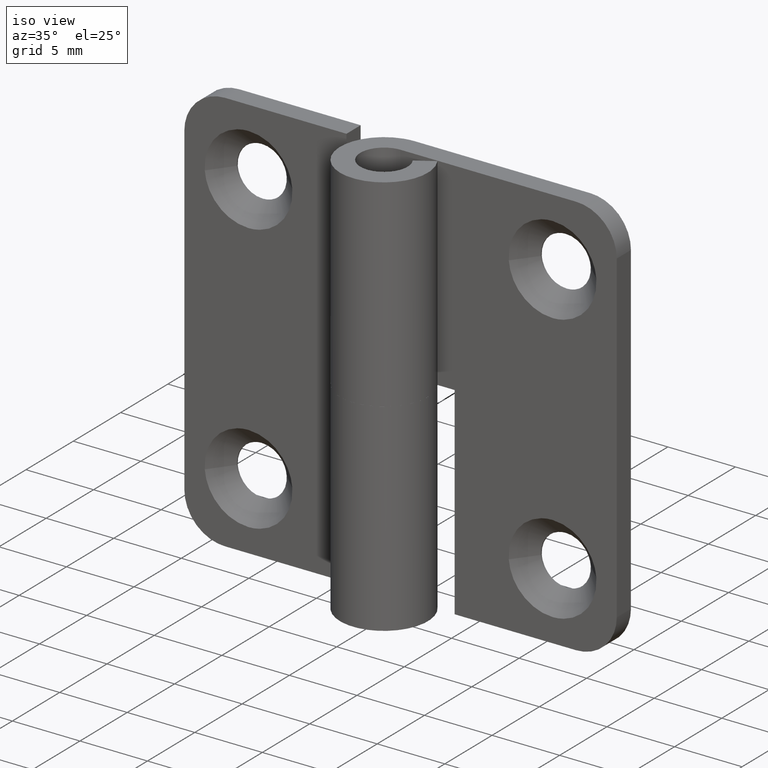
[diagram: clean part render]
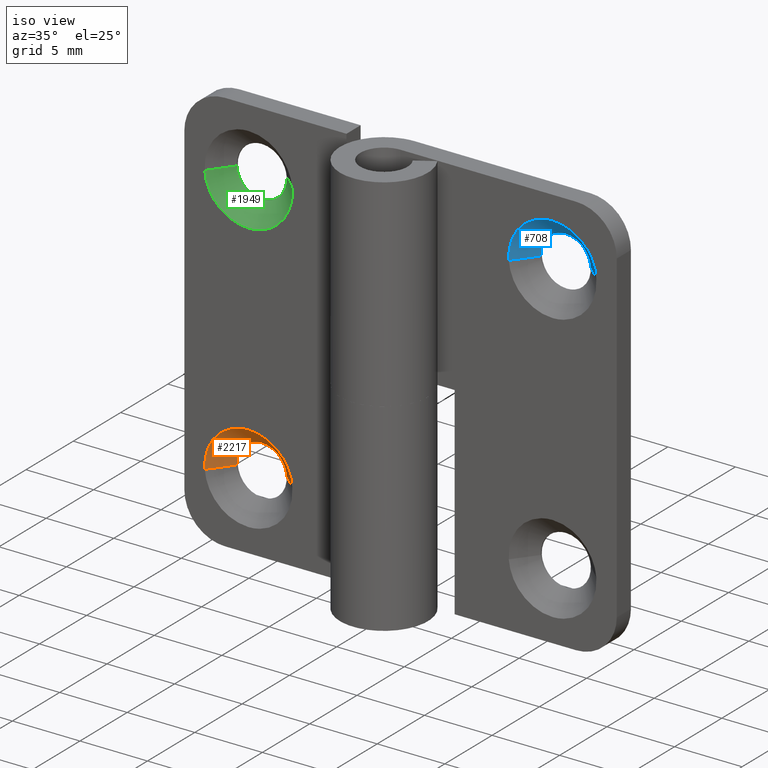
[diagram: same view with three faces highlighted in distinct colors, each labeled with its STEP entity id]
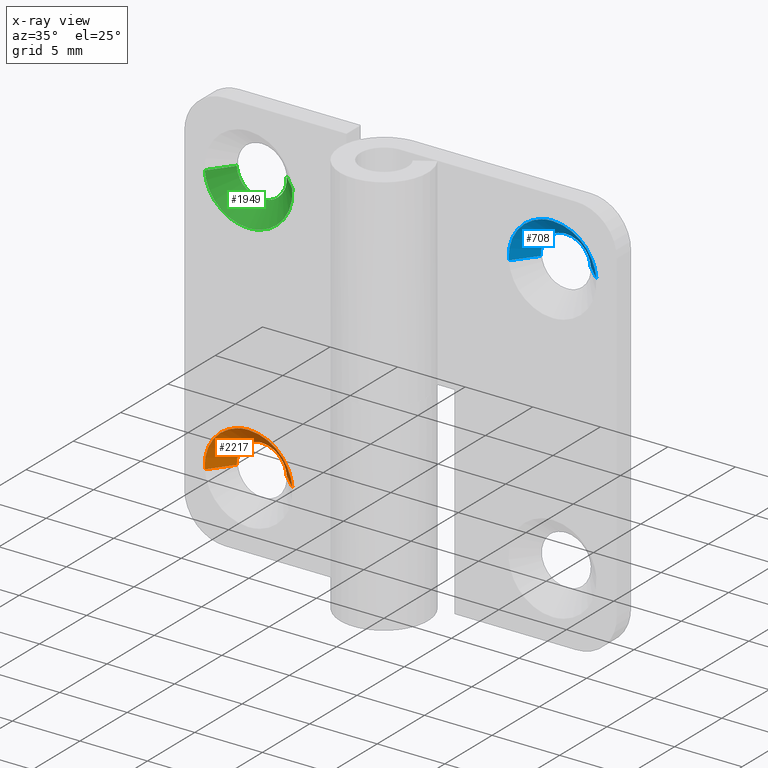
[diagram: x-ray of the same camera — body ghosted, the three highlighted faces saturated]
A machine part, iso view with three faces highlighted in distinct colors.
The next image is the same camera in x-ray (body ghosted, the three faces saturated) — at least one of them is partly hidden behind the body in this view.
Their STEP definitions:

[orange] entity #2217 — the highlighted face is a freeform B-spline surface patch.
#2022=CARTESIAN_POINT('',(-13.096549360003021,3.149999978168635,4.887060362003985));
#2023=VERTEX_POINT('',#2022);
#2067=CARTESIAN_POINT('',(-9.405703289372909,3.150000317850807,5.145149049549113));
#2068=VERTEX_POINT('',#2067);
#2084=CARTESIAN_POINT('',(-11.250000000000000,3.149999976158145,6.849999964237215));
#2085=VERTEX_POINT('',#2084);
#2086=CARTESIAN_POINT('',(-11.250000000000000,3.149999976158145,6.849999964237215));
#2087=CARTESIAN_POINT('',(-9.539877162278843,3.149999976158146,6.849999964237216));
#2088=CARTESIAN_POINT('',(-9.405703289372909,3.150000317850807,5.145149049549114));
#2096=(BOUNDED_CURVE()B_SPLINE_CURVE(2,(#2086,#2087,#2088),.UNSPECIFIED.,.F.,.U.)B_SPLINE_CURVE_WITH_KNOTS((3,3),(0.0,0.236331346722652),.UNSPECIFIED.)CURVE()GEOMETRIC_REPRESENTATION_ITEM()RATIONAL_B_SPLINE_CURVE((1.0,0.723120604607538,0.969723452357909))REPRESENTATION_ITEM(''));
#2097=EDGE_CURVE('',#2085,#2068,#2096,.T.);
#2099=CARTESIAN_POINT('',(-13.096549360003019,3.149999978168635,4.887060362003985));
#2100=CARTESIAN_POINT('',(-13.099999964237213,3.149999976158145,4.943477468465489));
#2101=CARTESIAN_POINT('',(-13.099999964237220,3.149999976158145,5.0));
#2102=CARTESIAN_POINT('',(-13.099999964237217,3.149999976158146,6.849999964237217));
#2103=CARTESIAN_POINT('',(-11.250000000000000,3.149999976158145,6.849999964237215));
#2111=(BOUNDED_CURVE()B_SPLINE_CURVE(2,(#2099,#2100,#2101,#2102,#2103),.UNSPECIFIED.,.F.,.U.)B_SPLINE_CURVE_WITH_KNOTS((3,2,3),(0.739332977053219,0.750000000000000,1.0),.UNSPECIFIED.)CURVE()GEOMETRIC_REPRESENTATION_ITEM()RATIONAL_B_SPLINE_CURVE((0.976072073416533,0.987502805255841,1.0,0.707106781186548,1.0))REPRESENTATION_ITEM(''));
#2112=EDGE_CURVE('',#2023,#2085,#2111,.T.);
#2151=CARTESIAN_POINT('',(-9.440595074332713,3.184999975562100,5.142403255986888));
#2152=CARTESIAN_POINT('',(-9.582998330319601,3.184999975562100,6.951808181654176));
#2153=CARTESIAN_POINT('',(-11.392403255986890,3.184999975562100,6.809404925667288));
#2154=CARTESIAN_POINT('',(-13.201808181654176,3.184999975562100,6.667001669680398));
#2155=CARTESIAN_POINT('',(-13.059404925667289,3.184999975562100,4.857596744013112));
#2156=CARTESIAN_POINT('',(-7.974254316049626,1.714125000610947,5.257806776450273));
#2157=CARTESIAN_POINT('',(-8.232061092499899,1.714125000610948,8.533552460400648));
#2158=CARTESIAN_POINT('',(-11.507806776450270,1.714125000610947,8.275745683950374));
#2159=CARTESIAN_POINT('',(-14.783552460400649,1.714125000610948,8.017938907500101));
#2160=CARTESIAN_POINT('',(-14.525745683950371,1.714125000610947,4.742193223549727));
#2168=(BOUNDED_SURFACE()B_SPLINE_SURFACE(2,1,((#2151,#2156),(#2152,#2157),(#2153,#2158),(#2154,#2159),(#2155,#2160)),.UNSPECIFIED.,.F.,.F.,.U.)B_SPLINE_SURFACE_WITH_KNOTS((3,2,3),(2,2),(0.0,5.444215857282317,10.888431714564630),(0.0,2.080131338131109),.UNSPECIFIED.)GEOMETRIC_REPRESENTATION_ITEM()RATIONAL_B_SPLINE_SURFACE(((1.0,1.0),(0.707106781186548,0.707106781186548),(1.0,1.0),(0.707106781186548,0.707106781186548),(1.0,1.0)))REPRESENTATION_ITEM('')SURFACE());
#2169=ORIENTED_EDGE('',*,*,#2097,.T.);
#2170=CARTESIAN_POINT('',(-8.010018724783620,1.749999999988450,5.254992056527515));
#2171=VERTEX_POINT('',#2170);
#2172=CARTESIAN_POINT('',(-9.405703289372909,3.150000317850807,5.145149049549113));
#2173=CARTESIAN_POINT('',(-8.010018724783620,1.749999999988450,5.254992056527515));
#2174=QUASI_UNIFORM_CURVE('',1,(#2172,#2173),.UNSPECIFIED.,.F.,.U.);
#2175=EDGE_CURVE('',#2068,#2171,#2174,.T.);
#2176=ORIENTED_EDGE('',*,*,#2175,.T.);
#2177=CARTESIAN_POINT('',(-11.250000000000000,1.750000000000000,8.249999940395357));
#2178=VERTEX_POINT('',#2177);
#2179=CARTESIAN_POINT('',(-11.250000000000000,1.750000000000000,8.249999940395357));
#2180=CARTESIAN_POINT('',(-8.245730957371819,1.750000000000000,8.249999940395355));
#2181=CARTESIAN_POINT('',(-8.010018724783620,1.749999999988450,5.254992056527515));
#2189=(BOUNDED_CURVE()B_SPLINE_CURVE(2,(#2179,#2180,#2181),.UNSPECIFIED.,.F.,.U.)B_SPLINE_CURVE_WITH_KNOTS((3,3),(0.0,0.236331300623493),.UNSPECIFIED.)CURVE()GEOMETRIC_REPRESENTATION_ITEM()RATIONAL_B_SPLINE_CURVE((1.0,0.723120658616061,0.969723356152462))REPRESENTATION_ITEM(''));
#2190=EDGE_CURVE('',#2178,#2171,#2189,.T.);
#2191=ORIENTED_EDGE('',*,*,#2190,.F.);
#2192=CARTESIAN_POINT('',(-14.489981275216380,1.749999999988450,4.745007943472485));
#2193=VERTEX_POINT('',#2192);
#2194=CARTESIAN_POINT('',(-14.489981275216383,1.749999999988450,4.745007943472485));
#2195=CARTESIAN_POINT('',(-14.499999940395353,1.750000000000001,4.872307154478901));
#2196=CARTESIAN_POINT('',(-14.499999940395361,1.750000000000000,5.0));
#2197=CARTESIAN_POINT('',(-14.499999940395357,1.750000000000000,8.249999940395355));
#2198=CARTESIAN_POINT('',(-11.250000000000000,1.750000000000000,8.249999940395357));
#2206=(BOUNDED_CURVE()B_SPLINE_CURVE(2,(#2194,#2195,#2196,#2197,#2198),.UNSPECIFIED.,.F.,.U.)B_SPLINE_CURVE_WITH_KNOTS((3,2,3),(0.736331300623493,0.750000000000000,1.0),.UNSPECIFIED.)CURVE()GEOMETRIC_REPRESENTATION_ITEM()RATIONAL_B_SPLINE_CURVE((0.969723356152462,0.983986122570486,1.0,0.707106781186547,1.0))REPRESENTATION_ITEM(''));
#2207=EDGE_CURVE('',#2193,#2178,#2206,.T.);
#2208=ORIENTED_EDGE('',*,*,#2207,.F.);
#2209=CARTESIAN_POINT('',(-13.096549360003021,3.149999978168635,4.887060362003985));
#2210=CARTESIAN_POINT('',(-14.489981275216380,1.749999999988450,4.745007943472485));
#2211=QUASI_UNIFORM_CURVE('',1,(#2209,#2210),.UNSPECIFIED.,.F.,.U.);
#2212=EDGE_CURVE('',#2023,#2193,#2211,.T.);
#2213=ORIENTED_EDGE('',*,*,#2212,.F.);
#2214=ORIENTED_EDGE('',*,*,#2112,.T.);
#2215=EDGE_LOOP('',(#2169,#2176,#2191,#2208,#2213,#2214));
#2216=FACE_OUTER_BOUND('',#2215,.T.);
#2217=ADVANCED_FACE('',(#2216),#2168,.F.);

[blue] entity #708 — the highlighted face is a freeform B-spline surface patch.
#509=CARTESIAN_POINT('',(9.404013780619756,3.150000111241691,24.879015888306430));
#510=VERTEX_POINT('',#509);
#558=CARTESIAN_POINT('',(13.094296746279610,3.150000282088026,25.145157052354818));
#559=VERTEX_POINT('',#558);
#575=CARTESIAN_POINT('',(11.250000000000000,3.149999940395355,26.850007999999800));
#576=VERTEX_POINT('',#575);
#577=CARTESIAN_POINT('',(11.250000000000000,3.149999940395355,26.850007999999800));
#578=CARTESIAN_POINT('',(12.960122870779935,3.149999940395354,26.850007999999804));
#579=CARTESIAN_POINT('',(13.094296746279614,3.150000282088026,25.145157052354822));
#587=(BOUNDED_CURVE()B_SPLINE_CURVE(2,(#577,#578,#579),.UNSPECIFIED.,.F.,.U.)B_SPLINE_CURVE_WITH_KNOTS((3,3),(0.0,0.236331346722651),.UNSPECIFIED.)CURVE()GEOMETRIC_REPRESENTATION_ITEM()RATIONAL_B_SPLINE_CURVE((1.0,0.723120604607538,0.969723452357908))REPRESENTATION_ITEM(''));
#588=EDGE_CURVE('',#576,#559,#587,.T.);
#590=CARTESIAN_POINT('',(9.404013780619756,3.150000111241691,24.879015888306427));
#591=CARTESIAN_POINT('',(9.400051993305185,3.150000108622520,24.939448787154575));
#592=CARTESIAN_POINT('',(9.400051129014356,3.150000105826059,25.000011351166489));
#593=CARTESIAN_POINT('',(9.400024727613369,3.150000020402892,26.850009620730333));
#594=CARTESIAN_POINT('',(11.250000000000000,3.149999940395355,26.850007999999800));
#602=(BOUNDED_CURVE()B_SPLINE_CURVE(2,(#590,#591,#592,#593,#594),.UNSPECIFIED.,.F.,.U.)B_SPLINE_CURVE_WITH_KNOTS((3,2,3),(0.738580725636300,0.750000000000000,1.0),.UNSPECIFIED.)CURVE()GEOMETRIC_REPRESENTATION_ITEM()RATIONAL_B_SPLINE_CURVE((0.974465159002761,0.986621487900407,1.0,0.707106781186548,1.0))REPRESENTATION_ITEM(''));
#603=EDGE_CURVE('',#510,#576,#602,.T.);
#642=CARTESIAN_POINT('',(13.059404960725630,3.184999938905240,25.142411258745842));
#643=CARTESIAN_POINT('',(12.917001701979586,3.184999938905240,26.951816219471461));
#644=CARTESIAN_POINT('',(11.107596741253960,3.184999938905240,26.809412960725432));
#645=CARTESIAN_POINT('',(9.298191780528335,3.184999938905240,26.667009701979389));
#646=CARTESIAN_POINT('',(9.440595039274374,3.184999938905240,24.857604741253759));
#647=CARTESIAN_POINT('',(14.525745743980339,1.714125001527369,25.257814781174542));
#648=CARTESIAN_POINT('',(14.267938962805607,1.714125001527369,28.533560525154876));
#649=CARTESIAN_POINT('',(10.992193218825269,1.714125001527369,28.275753743980140));
#650=CARTESIAN_POINT('',(7.716447474844923,1.714125001527369,28.017946962805397));
#651=CARTESIAN_POINT('',(7.974254256019657,1.714125001527369,24.742201218825059));
#659=(BOUNDED_SURFACE()B_SPLINE_SURFACE(2,1,((#642,#647),(#643,#648),(#644,#649),(#645,#650),(#646,#651)),.UNSPECIFIED.,.F.,.F.,.U.)B_SPLINE_SURFACE_WITH_KNOTS((3,2,3),(2,2),(0.0,5.444215957050774,10.888431914101551),(0.0,2.080131329274996),.UNSPECIFIED.)GEOMETRIC_REPRESENTATION_ITEM()RATIONAL_B_SPLINE_SURFACE(((1.0,1.0),(0.707106781186548,0.707106781186548),(1.0,1.0),(0.707106781186548,0.707106781186548),(1.0,1.0)))REPRESENTATION_ITEM('')SURFACE());
#660=ORIENTED_EDGE('',*,*,#588,.T.);
#661=CARTESIAN_POINT('',(14.489981334637280,1.749999999988450,25.255000061203841));
#662=VERTEX_POINT('',#661);
#663=CARTESIAN_POINT('',(13.094296746279610,3.150000282088026,25.145157052354818));
#664=CARTESIAN_POINT('',(14.489981334637280,1.749999999988450,25.255000061203841));
#665=QUASI_UNIFORM_CURVE('',1,(#663,#664),.UNSPECIFIED.,.F.,.U.);
#666=EDGE_CURVE('',#559,#662,#665,.T.);
#667=ORIENTED_EDGE('',*,*,#666,.T.);
#668=CARTESIAN_POINT('',(11.250000000000000,1.750000000000000,28.250007999999799));
#669=VERTEX_POINT('',#668);
#670=CARTESIAN_POINT('',(11.250000000000000,1.750000000000000,28.250007999999799));
#671=CARTESIAN_POINT('',(14.254269097726139,1.750000000000000,28.250007999999802));
#672=CARTESIAN_POINT('',(14.489981334637282,1.749999999988450,25.255000061203837));
#680=(BOUNDED_CURVE()B_SPLINE_CURVE(2,(#670,#671,#672),.UNSPECIFIED.,.F.,.U.)B_SPLINE_CURVE_WITH_KNOTS((3,3),(0.0,0.236331300623493),.UNSPECIFIED.)CURVE()GEOMETRIC_REPRESENTATION_ITEM()RATIONAL_B_SPLINE_CURVE((1.0,0.723120658616062,0.969723356152462))REPRESENTATION_ITEM(''));
#681=EDGE_CURVE('',#669,#662,#680,.T.);
#682=ORIENTED_EDGE('',*,*,#681,.F.);
#683=CARTESIAN_POINT('',(8.010018665362717,1.749999999988451,24.745015938795749));
#684=VERTEX_POINT('',#683);
#685=CARTESIAN_POINT('',(8.010018665362717,1.749999999988450,24.745015938795749));
#686=CARTESIAN_POINT('',(8.000000000000002,1.750000000000000,24.872315152136824));
#687=CARTESIAN_POINT('',(8.0,1.750000000000000,25.000007999999799));
#688=CARTESIAN_POINT('',(8.0,1.750000000000000,28.250007999999792));
#689=CARTESIAN_POINT('',(11.250000000000000,1.750000000000000,28.250007999999799));
#697=(BOUNDED_CURVE()B_SPLINE_CURVE(2,(#685,#686,#687,#688,#689),.UNSPECIFIED.,.F.,.U.)B_SPLINE_CURVE_WITH_KNOTS((3,2,3),(0.736331300623493,0.750000000000000,1.0),.UNSPECIFIED.)CURVE()GEOMETRIC_REPRESENTATION_ITEM()RATIONAL_B_SPLINE_CURVE((0.969723356152461,0.983986122570486,1.0,0.707106781186547,1.0))REPRESENTATION_ITEM(''));
#698=EDGE_CURVE('',#684,#669,#697,.T.);
#699=ORIENTED_EDGE('',*,*,#698,.F.);
#700=CARTESIAN_POINT('',(9.404013780619756,3.150000111241691,24.879015888306430));
#701=CARTESIAN_POINT('',(8.010018665362717,1.749999999988451,24.745015938795749));
#702=QUASI_UNIFORM_CURVE('',1,(#700,#701),.UNSPECIFIED.,.F.,.U.);
#703=EDGE_CURVE('',#510,#684,#702,.T.);
#704=ORIENTED_EDGE('',*,*,#703,.F.);
#705=ORIENTED_EDGE('',*,*,#603,.T.);
#706=EDGE_LOOP('',(#660,#667,#682,#699,#704,#705));
#707=FACE_OUTER_BOUND('',#706,.T.);
#708=ADVANCED_FACE('',(#707),#659,.F.);

[green] entity #1949 — the highlighted face is a freeform B-spline surface patch.
#1640=CARTESIAN_POINT('',(-9.412082018791839,3.149999976158146,24.788921773281931));
#1641=VERTEX_POINT('',#1640);
#1642=CARTESIAN_POINT('',(-11.250000000000000,3.149999976158145,23.150008035762578));
#1643=VERTEX_POINT('',#1642);
#1644=CARTESIAN_POINT('',(-9.412082018791839,3.149999976158146,24.788921773281924));
#1645=CARTESIAN_POINT('',(-9.600312471326085,3.149999976158145,23.150008035762585));
#1646=CARTESIAN_POINT('',(-11.250000000000000,3.149999976158145,23.150008035762578));
#1654=(BOUNDED_CURVE()B_SPLINE_CURVE(2,(#1644,#1645,#1646),.UNSPECIFIED.,.F.,.U.)B_SPLINE_CURVE_WITH_KNOTS((3,3),(0.269767755878197,0.500000000000000),.UNSPECIFIED.)CURVE()GEOMETRIC_REPRESENTATION_ITEM()RATIONAL_B_SPLINE_CURVE((0.957343736457532,0.730266147778082,1.0))REPRESENTATION_ITEM(''));
#1655=EDGE_CURVE('',#1641,#1643,#1654,.T.);
#1694=CARTESIAN_POINT('',(-13.096549360003021,3.149999978168635,24.887068362003792));
#1695=VERTEX_POINT('',#1694);
#1701=CARTESIAN_POINT('',(-11.250000000000000,3.149999976158145,23.150008035762578));
#1702=CARTESIAN_POINT('',(-12.990306339798639,3.149999976158145,23.150008035762589));
#1703=CARTESIAN_POINT('',(-13.096549360003022,3.149999978168636,24.887068362003788));
#1711=(BOUNDED_CURVE()B_SPLINE_CURVE(2,(#1701,#1702,#1703),.UNSPECIFIED.,.F.,.U.)B_SPLINE_CURVE_WITH_KNOTS((3,3),(0.500000000000000,0.739332977053219),.UNSPECIFIED.)CURVE()GEOMETRIC_REPRESENTATION_ITEM()RATIONAL_B_SPLINE_CURVE((1.0,0.719603975930706,0.976072073416534))REPRESENTATION_ITEM(''));
#1712=EDGE_CURVE('',#1643,#1695,#1711,.T.);
#1739=CARTESIAN_POINT('',(-9.405703289372909,3.150000317850807,25.145157049548910));
#1740=VERTEX_POINT('',#1739);
#1741=CARTESIAN_POINT('',(-9.405703289372909,3.150000317850807,25.145157049548910));
#1742=CARTESIAN_POINT('',(-9.400000035762783,3.149999976158145,25.072694447475705));
#1743=CARTESIAN_POINT('',(-9.400000035762783,3.149999976158145,25.000007999999799));
#1744=CARTESIAN_POINT('',(-9.400000035762783,3.149999976158145,24.894119117241267));
#1745=CARTESIAN_POINT('',(-9.412082018791839,3.149999976158146,24.788921773281931));
#1753=(BOUNDED_CURVE()B_SPLINE_CURVE(2,(#1741,#1742,#1743,#1744,#1745),.UNSPECIFIED.,.F.,.U.)B_SPLINE_CURVE_WITH_KNOTS((3,2,3),(0.236331346722652,0.250000000000000,0.269767755878197),.UNSPECIFIED.)CURVE()GEOMETRIC_REPRESENTATION_ITEM()RATIONAL_B_SPLINE_CURVE((0.969723452357909,0.983986176579009,1.0,0.976840633408466,0.957343736457532))REPRESENTATION_ITEM(''));
#1754=EDGE_CURVE('',#1740,#1641,#1753,.T.);
#1842=CARTESIAN_POINT('',(-8.010018724783620,1.749999999988450,25.255000056527319));
#1843=VERTEX_POINT('',#1842);
#1844=CARTESIAN_POINT('',(-9.405703289372909,3.150000317850807,25.145157049548910));
#1845=CARTESIAN_POINT('',(-8.010018724783620,1.749999999988450,25.255000056527319));
#1846=QUASI_UNIFORM_CURVE('',1,(#1844,#1845),.UNSPECIFIED.,.F.,.U.);
#1847=EDGE_CURVE('',#1740,#1843,#1846,.T.);
#1864=CARTESIAN_POINT('',(-14.489981275216380,1.749999999988450,24.745015943472279));
#1865=VERTEX_POINT('',#1864);
#1881=CARTESIAN_POINT('',(-13.096549360003021,3.149999978168635,24.887068362003792));
#1882=CARTESIAN_POINT('',(-14.489981275216380,1.749999999988450,24.745015943472279));
#1883=QUASI_UNIFORM_CURVE('',1,(#1881,#1882),.UNSPECIFIED.,.F.,.U.);
#1884=EDGE_CURVE('',#1695,#1865,#1883,.T.);
#1890=CARTESIAN_POINT('',(-13.063858276367728,3.184999975562100,24.914189929774629));
#1891=CARTESIAN_POINT('',(-13.061646116791255,3.184999975562099,24.886081777286961));
#1892=CARTESIAN_POINT('',(-12.917001669680399,3.184999975562100,23.048199818345616));
#1893=CARTESIAN_POINT('',(-11.107596744013110,3.184999975562100,23.190603074332511));
#1894=CARTESIAN_POINT('',(-9.298191818345824,3.184999975562100,23.333006330319403));
#1895=CARTESIAN_POINT('',(-9.441605254088934,3.184999975562098,25.155246806789641));
#1896=CARTESIAN_POINT('',(-9.442609514720642,3.184999975562099,25.168007147984564));
#1897=CARTESIAN_POINT('',(-14.533808027613270,1.714125000610948,24.844643012783688));
#1898=CARTESIAN_POINT('',(-14.529803135130646,1.714125000610947,24.793756028953176));
#1899=CARTESIAN_POINT('',(-14.267938907500097,1.714125000610948,21.466455539599153));
#1900=CARTESIAN_POINT('',(-10.992193223549730,1.714125000610947,21.724262316049430));
#1901=CARTESIAN_POINT('',(-7.716447539599353,1.714125000610948,21.982069092499707));
#1902=CARTESIAN_POINT('',(-7.976083144925644,1.714125000610947,25.281052250576227));
#1903=CARTESIAN_POINT('',(-7.977901257821882,1.714125000610947,25.304153565269278));
#1911=(BOUNDED_SURFACE()B_SPLINE_SURFACE(2,1,((#1890,#1897),(#1891,#1898),(#1892,#1899),(#1893,#1900),(#1894,#1901),(#1895,#1902),(#1896,#1903)),.UNSPECIFIED.,.F.,.F.,.U.)B_SPLINE_SURFACE_WITH_KNOTS((3,1,2,1,3),(2,2),(0.0,0.121969082761393,5.566184940043706,11.010400797326019,11.065178909631751),(0.0,2.080639862347000),.UNSPECIFIED.)GEOMETRIC_REPRESENTATION_ITEM()RATIONAL_B_SPLINE_SURFACE(((1.013123622641789,1.013123622641789),(1.006561811320895,1.006561811320895),(0.707106781186548,0.707106781186548),(1.0,1.0),(0.707106781186548,0.707106781186548),(1.002947006153750,1.002947006153750),(1.005894012307499,1.005894012307499)))REPRESENTATION_ITEM('')SURFACE());
#1912=ORIENTED_EDGE('',*,*,#1754,.T.);
#1913=ORIENTED_EDGE('',*,*,#1655,.T.);
#1914=ORIENTED_EDGE('',*,*,#1712,.T.);
#1915=ORIENTED_EDGE('',*,*,#1884,.T.);
#1916=CARTESIAN_POINT('',(-11.250000000000000,1.750000000000000,21.750008059604440));
#1917=VERTEX_POINT('',#1916);
#1918=CARTESIAN_POINT('',(-11.250000000000000,1.750000000000000,21.750008059604440));
#1919=CARTESIAN_POINT('',(-14.254269042628179,1.750000000000000,21.750008059604440));
#1920=CARTESIAN_POINT('',(-14.489981275216381,1.749999999988450,24.745015943472282));
#1928=(BOUNDED_CURVE()B_SPLINE_CURVE(2,(#1918,#1919,#1920),.UNSPECIFIED.,.F.,.U.)B_SPLINE_CURVE_WITH_KNOTS((3,3),(0.500000000000000,0.736331300623494),.UNSPECIFIED.)CURVE()GEOMETRIC_REPRESENTATION_ITEM()RATIONAL_B_SPLINE_CURVE((1.0,0.723120658616061,0.969723356152463))REPRESENTATION_ITEM(''));
#1929=EDGE_CURVE('',#1917,#1865,#1928,.T.);
#1930=ORIENTED_EDGE('',*,*,#1929,.F.);
#1931=CARTESIAN_POINT('',(-8.010018724783620,1.749999999988450,25.255000056527315));
#1932=CARTESIAN_POINT('',(-8.000000059604647,1.750000000000000,25.127700845520899));
#1933=CARTESIAN_POINT('',(-8.000000059604645,1.750000000000000,25.000007999999799));
#1934=CARTESIAN_POINT('',(-8.000000059604645,1.750000000000000,21.750008059604440));
#1935=CARTESIAN_POINT('',(-11.250000000000000,1.750000000000000,21.750008059604440));
#1943=(BOUNDED_CURVE()B_SPLINE_CURVE(2,(#1931,#1932,#1933,#1934,#1935),.UNSPECIFIED.,.F.,.U.)B_SPLINE_CURVE_WITH_KNOTS((3,2,3),(0.236331300623493,0.250000000000000,0.500000000000000),.UNSPECIFIED.)CURVE()GEOMETRIC_REPRESENTATION_ITEM()RATIONAL_B_SPLINE_CURVE((0.969723356152462,0.983986122570486,1.0,0.707106781186547,1.0))REPRESENTATION_ITEM(''));
#1944=EDGE_CURVE('',#1843,#1917,#1943,.T.);
#1945=ORIENTED_EDGE('',*,*,#1944,.F.);
#1946=ORIENTED_EDGE('',*,*,#1847,.F.);
#1947=EDGE_LOOP('',(#1912,#1913,#1914,#1915,#1930,#1945,#1946));
#1948=FACE_OUTER_BOUND('',#1947,.T.);
#1949=ADVANCED_FACE('',(#1948),#1911,.F.);